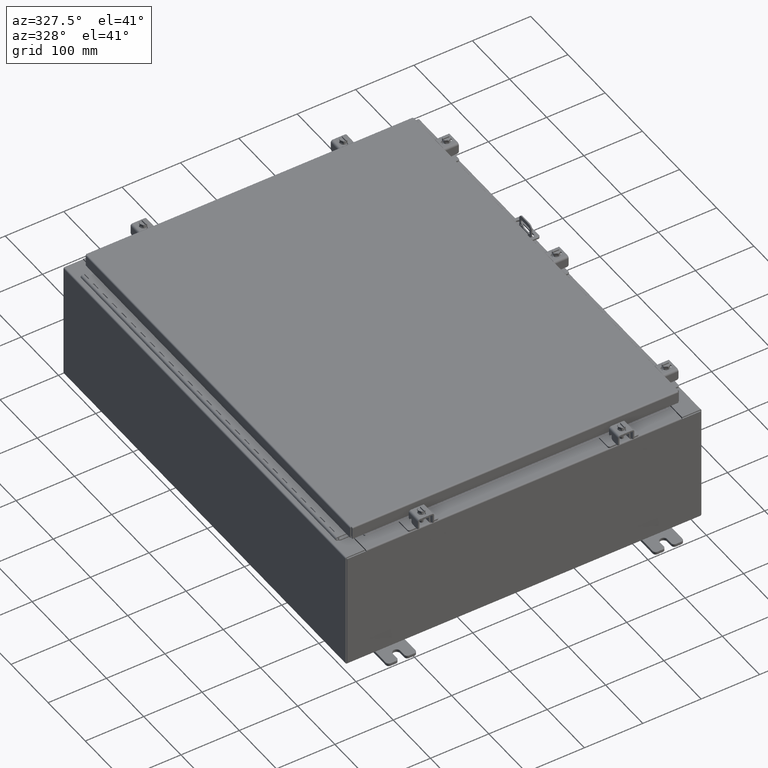
[diagram: clean part render]
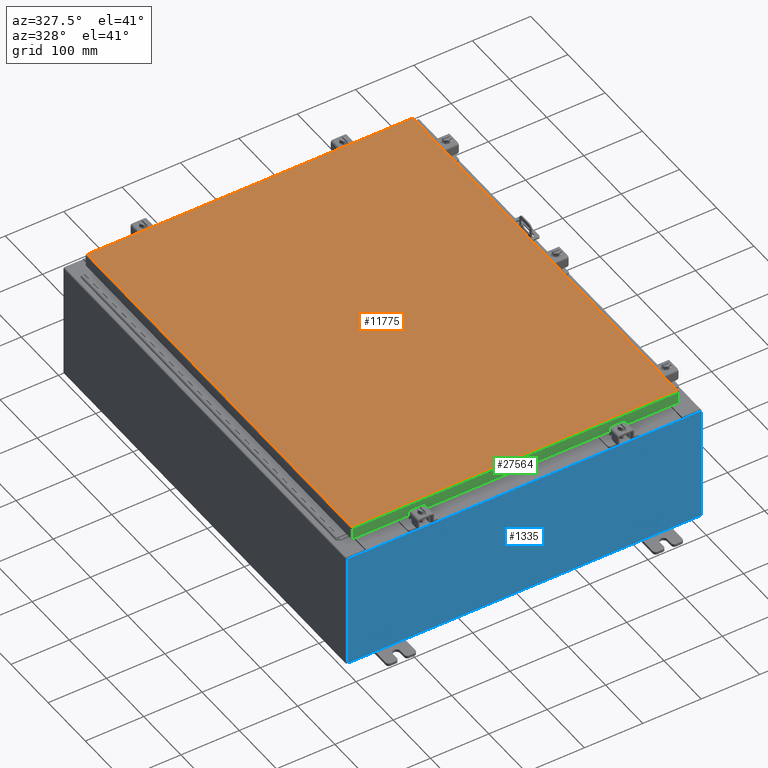
[diagram: same view with three faces highlighted in distinct colors, each labeled with its STEP entity id]
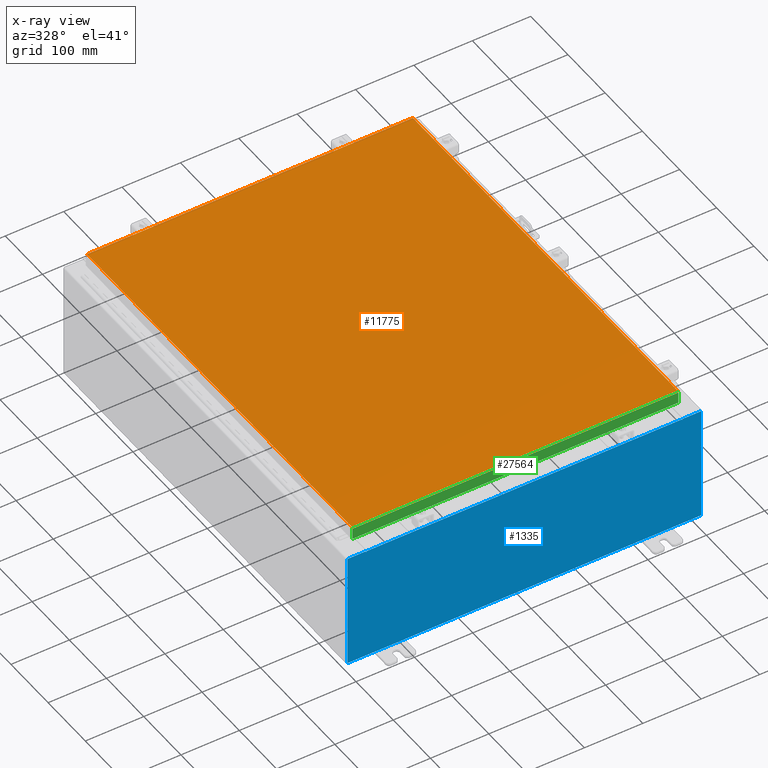
[diagram: x-ray of the same camera — body ghosted, the three highlighted faces saturated]
A machine part, auxiliary view with three faces highlighted in distinct colors.
The next image is the same camera in x-ray (body ghosted, the three faces saturated) — at least one of them is partly hidden behind the body in this view.
Their STEP definitions:

[orange] entity #11775 — the highlighted planar face has unit normal (0, 0, -1).
#147 = CARTESIAN_POINT ( 'NONE',  ( 10.99030000000000000, 14.00629999999999800, 0.0000000000000000000 ) ) ;
#898 = LINE ( 'NONE', #33983, #15507 ) ;
#1748 = VERTEX_POINT ( 'NONE', #33797 ) ;
#2654 = LINE ( 'NONE', #31669, #9522 ) ;
#3796 = EDGE_CURVE ( 'NONE', #9666, #23939, #2654, .T. ) ;
#4827 = VECTOR ( 'NONE', #8976, 39.37007874015748100 ) ;
#6013 = CARTESIAN_POINT ( 'NONE',  ( -10.99029999999999600, -14.00629999999999800, 0.0000000000000000000 ) ) ;
#6462 = EDGE_CURVE ( 'NONE', #23939, #1748, #13540, .T. ) ;
#7093 = EDGE_LOOP ( 'NONE', ( #15624, #18468, #17338, #9030 ) ) ;
#8225 = DIRECTION ( 'NONE',  ( 0.0000000000000000000, -1.000000000000000000, 0.0000000000000000000 ) ) ;
#8976 = DIRECTION ( 'NONE',  ( 1.000000000000000000, -0.0000000000000000000, -0.0000000000000000000 ) ) ;
#9030 = ORIENTED_EDGE ( 'NONE', *, *, #3796, .T. ) ;
#9522 = VECTOR ( 'NONE', #8225, 39.37007874015748100 ) ;
#9577 = CARTESIAN_POINT ( 'NONE',  ( -10.99030000000000000, 14.00630000000000100, 0.0000000000000000000 ) ) ;
#9666 = VERTEX_POINT ( 'NONE', #9577 ) ;
#9908 = DIRECTION ( 'NONE',  ( -1.000000000000000000, 0.0000000000000000000, -0.0000000000000000000 ) ) ;
#11775 = ADVANCED_FACE ( 'NONE', ( #27002 ), #15650, .F. ) ;
#13540 = LINE ( 'NONE', #6013, #4827 ) ;
#14327 = EDGE_CURVE ( 'NONE', #1748, #22404, #23550, .T. ) ;
#15507 = VECTOR ( 'NONE', #22552, 39.37007874015748100 ) ;
#15624 = ORIENTED_EDGE ( 'NONE', *, *, #6462, .T. ) ;
#15650 = PLANE ( 'NONE',  #28026 ) ;
#17338 = ORIENTED_EDGE ( 'NONE', *, *, #22203, .T. ) ;
#18468 = ORIENTED_EDGE ( 'NONE', *, *, #14327, .T. ) ;
#21563 = CARTESIAN_POINT ( 'NONE',  ( 0.0000000000000000000, 0.0000000000000000000, 0.0000000000000000000 ) ) ;
#22203 = EDGE_CURVE ( 'NONE', #22404, #9666, #898, .T. ) ;
#22404 = VERTEX_POINT ( 'NONE', #147 ) ;
#22552 = DIRECTION ( 'NONE',  ( -1.000000000000000000, -0.0000000000000000000, -0.0000000000000000000 ) ) ;
#23550 = LINE ( 'NONE', #30369, #37307 ) ;
#23939 = VERTEX_POINT ( 'NONE', #27483 ) ;
#27002 = FACE_OUTER_BOUND ( 'NONE', #7093, .T. ) ;
#27430 = DIRECTION ( 'NONE',  ( 0.0000000000000000000, 0.0000000000000000000, -1.000000000000000000 ) ) ;
#27483 = CARTESIAN_POINT ( 'NONE',  ( -10.99029999999999800, -14.00629999999999800, 0.0000000000000000000 ) ) ;
#28026 = AXIS2_PLACEMENT_3D ( 'NONE', #21563, #27430, #9908 ) ;
#30369 = CARTESIAN_POINT ( 'NONE',  ( 10.99030000000000000, -14.00629999999999800, 0.0000000000000000000 ) ) ;
#31669 = CARTESIAN_POINT ( 'NONE',  ( -10.99030000000000000, 14.00630000000000100, 0.0000000000000000000 ) ) ;
#33336 = DIRECTION ( 'NONE',  ( 0.0000000000000000000, 1.000000000000000000, 0.0000000000000000000 ) ) ;
#33797 = CARTESIAN_POINT ( 'NONE',  ( 10.99030000000000000, -14.00629999999999800, 0.0000000000000000000 ) ) ;
#33983 = CARTESIAN_POINT ( 'NONE',  ( 10.99030000000000000, 14.00629999999999800, 0.0000000000000000000 ) ) ;
#37307 = VECTOR ( 'NONE', #33336, 39.37007874015748100 ) ;

[blue] entity #1335 — the highlighted planar face has unit normal (0, 1, -0).
#84 = EDGE_CURVE ( 'NONE', #23436, #16726, #15712, .T. ) ;
#534 = CARTESIAN_POINT ( 'NONE',  ( -10.63720000000000400, 0.0000000000000000000, 3.912299999999988600 ) ) ;
#911 = VERTEX_POINT ( 'NONE', #33128 ) ;
#1235 = EDGE_CURVE ( 'NONE', #27130, #23436, #16993, .T. ) ;
#1335 = ADVANCED_FACE ( 'NONE', ( #5556 ), #29099, .F. ) ;
#1553 = EDGE_CURVE ( 'NONE', #15920, #2711, #22510, .T. ) ;
#1657 = CARTESIAN_POINT ( 'NONE',  ( 10.63720000000000400, 0.0000000000000000000, 8.195543980992789300E-015 ) ) ;
#1934 = DIRECTION ( 'NONE',  ( 2.688223102148528000E-016, 1.000000000000000000, -1.677591767810434000E-016 ) ) ;
#2231 = CARTESIAN_POINT ( 'NONE',  ( 10.67455000000000200, 0.0000000000000000000, 3.925300000000010700 ) ) ;
#2554 = VECTOR ( 'NONE', #19184, 39.37007874015748100 ) ;
#2711 = VERTEX_POINT ( 'NONE', #15371 ) ;
#2815 = CARTESIAN_POINT ( 'NONE',  ( -11.92530000000000000, 0.0000000000000000000, 3.925299999999987600 ) ) ;
#3107 = DIRECTION ( 'NONE',  ( -4.423839507246891700E-014, 1.677591767810317700E-016, -1.000000000000000000 ) ) ;
#3458 = LINE ( 'NONE', #32309, #10301 ) ;
#3584 = VERTEX_POINT ( 'NONE', #24903 ) ;
#4334 = CIRCLE ( 'NONE', #10418, 0.01867499999999949400 ) ;
#4408 = CARTESIAN_POINT ( 'NONE',  ( 11.92530000000000000, 0.0000000000000000000, 3.925300000000012000 ) ) ;
#4872 = EDGE_CURVE ( 'NONE', #37538, #911, #25140, .T. ) ;
#5194 = CARTESIAN_POINT ( 'NONE',  ( 10.67455000000000200, 0.0000000000000000000, 3.874950000000010300 ) ) ;
#5541 = CARTESIAN_POINT ( 'NONE',  ( 11.92530000000000000, 0.0000000000000000000, -3.925299999999988900 ) ) ;
#5556 = FACE_OUTER_BOUND ( 'NONE', #17847, .T. ) ;
#6294 = CARTESIAN_POINT ( 'NONE',  ( -10.63720000000000400, 0.0000000000000000000, 3.874949999999988600 ) ) ;
#6473 = DIRECTION ( 'NONE',  ( 1.000000000000000000, 2.688223102148527500E-016, 8.326672684688674100E-016 ) ) ;
#6784 = EDGE_CURVE ( 'NONE', #911, #16726, #25908, .T. ) ;
#6918 = ORIENTED_EDGE ( 'NONE', *, *, #4872, .F. ) ;
#7567 = ORIENTED_EDGE ( 'NONE', *, *, #37176, .T. ) ;
#7648 = CARTESIAN_POINT ( 'NONE',  ( -10.65587500000000200, 0.0000000000000000000, 3.874949999999988600 ) ) ;
#7837 = CARTESIAN_POINT ( 'NONE',  ( -11.92530000000000000, 0.0000000000000000000, -3.925300000000010700 ) ) ;
#8721 = DIRECTION ( 'NONE',  ( -8.326672684688674100E-016, 1.677591767810434500E-016, -1.000000000000000000 ) ) ;
#8738 = CARTESIAN_POINT ( 'NONE',  ( 0.0000000000000000000, 0.0000000000000000000, 0.0000000000000000000 ) ) ;
#8869 = EDGE_CURVE ( 'NONE', #3584, #37538, #34627, .T. ) ;
#8897 = EDGE_CURVE ( 'NONE', #15920, #21085, #3458, .T. ) ;
#8996 = EDGE_CURVE ( 'NONE', #3584, #27946, #23142, .T. ) ;
#9677 = VERTEX_POINT ( 'NONE', #35983 ) ;
#10301 = VECTOR ( 'NONE', #3107, 39.37007874015748100 ) ;
#10314 = ORIENTED_EDGE ( 'NONE', *, *, #37225, .T. ) ;
#10397 = ORIENTED_EDGE ( 'NONE', *, *, #8869, .F. ) ;
#10418 = AXIS2_PLACEMENT_3D ( 'NONE', #19454, #1934, #22422 ) ;
#10585 = DIRECTION ( 'NONE',  ( 0.0000000000000000000, 1.677591767810434500E-016, -1.000000000000000000 ) ) ;
#10968 = EDGE_CURVE ( 'NONE', #9677, #27946, #17440, .T. ) ;
#11662 = DIRECTION ( 'NONE',  ( -8.326672684688674100E-016, 1.677591767810434500E-016, -1.000000000000000000 ) ) ;
#11706 = VECTOR ( 'NONE', #16169, 39.37007874015748100 ) ;
#12842 = ORIENTED_EDGE ( 'NONE', *, *, #8897, .F. ) ;
#14694 = VECTOR ( 'NONE', #16214, 39.37007874015748100 ) ;
#15371 = CARTESIAN_POINT ( 'NONE',  ( 11.92530000000000000, 0.0000000000000000000, 3.925300000000012000 ) ) ;
#15712 = LINE ( 'NONE', #2815, #32250 ) ;
#15920 = VERTEX_POINT ( 'NONE', #2231 ) ;
#16169 = DIRECTION ( 'NONE',  ( -8.326672684688674100E-016, 1.677591767810434500E-016, -1.000000000000000000 ) ) ;
#16214 = DIRECTION ( 'NONE',  ( 8.326672684688674100E-016, -1.677591767810434500E-016, 1.000000000000000000 ) ) ;
#16230 = CARTESIAN_POINT ( 'NONE',  ( 10.63720000000000400, 0.0000000000000000000, 3.912300000000005000 ) ) ;
#16726 = VERTEX_POINT ( 'NONE', #35481 ) ;
#16993 = LINE ( 'NONE', #37584, #24822 ) ;
#17440 = LINE ( 'NONE', #1657, #14694 ) ;
#17679 = VECTOR ( 'NONE', #28331, 39.37007874015748100 ) ;
#17847 = EDGE_LOOP ( 'NONE', ( #34168, #6918, #10397, #22356, #21162, #27028, #12842, #21238, #7567, #10314, #37243, #20823 ) ) ;
#18950 = CARTESIAN_POINT ( 'NONE',  ( -11.92530000000000000, 0.0000000000000000000, 3.925299999999987600 ) ) ;
#19021 = VECTOR ( 'NONE', #8721, 39.37007874015748100 ) ;
#19184 = DIRECTION ( 'NONE',  ( 8.326672684688674100E-016, -1.677591767810434500E-016, 1.000000000000000000 ) ) ;
#19454 = CARTESIAN_POINT ( 'NONE',  ( 10.65587500000000200, 0.0000000000000000000, 3.874950000000010300 ) ) ;
#20005 = DIRECTION ( 'NONE',  ( 8.326672684688674100E-016, -1.677591767810434500E-016, 1.000000000000000000 ) ) ;
#20823 = ORIENTED_EDGE ( 'NONE', *, *, #84, .T. ) ;
#21085 = VERTEX_POINT ( 'NONE', #5194 ) ;
#21162 = ORIENTED_EDGE ( 'NONE', *, *, #10968, .F. ) ;
#21238 = ORIENTED_EDGE ( 'NONE', *, *, #1553, .T. ) ;
#22356 = ORIENTED_EDGE ( 'NONE', *, *, #8996, .T. ) ;
#22422 = DIRECTION ( 'NONE',  ( 0.0000000000000000000, 1.677591767810434500E-016, -1.000000000000000000 ) ) ;
#22510 = LINE ( 'NONE', #24336, #36284 ) ;
#23142 = LINE ( 'NONE', #534, #37817 ) ;
#23287 = DIRECTION ( 'NONE',  ( 1.000000000000000000, 2.688223102148527500E-016, 8.326672684688674100E-016 ) ) ;
#23354 = CARTESIAN_POINT ( 'NONE',  ( -11.92530000000000000, 0.0000000000000000000, -3.925300000000010700 ) ) ;
#23436 = VERTEX_POINT ( 'NONE', #18950 ) ;
#24336 = CARTESIAN_POINT ( 'NONE',  ( -11.92530000000000000, 0.0000000000000000000, 3.925299999999987600 ) ) ;
#24566 = LINE ( 'NONE', #7837, #17679 ) ;
#24822 = VECTOR ( 'NONE', #20005, 39.37007874015748100 ) ;
#24903 = CARTESIAN_POINT ( 'NONE',  ( -10.63720000000000400, 0.0000000000000000000, 3.912299999999988600 ) ) ;
#24961 = CARTESIAN_POINT ( 'NONE',  ( -10.67455000000000200, 0.0000000000000000000, -8.195543980992789300E-015 ) ) ;
#25140 = CIRCLE ( 'NONE', #34256, 0.01867499999999949400 ) ;
#25908 = LINE ( 'NONE', #24961, #2554 ) ;
#27028 = ORIENTED_EDGE ( 'NONE', *, *, #37854, .F. ) ;
#27130 = VERTEX_POINT ( 'NONE', #23354 ) ;
#27946 = VERTEX_POINT ( 'NONE', #16230 ) ;
#28134 = DIRECTION ( 'NONE',  ( 2.688223102148528000E-016, 1.000000000000000000, -1.677591767810434000E-016 ) ) ;
#28331 = DIRECTION ( 'NONE',  ( -1.000000000000000000, -2.688223102148527500E-016, -8.326672684688674100E-016 ) ) ;
#28373 = VERTEX_POINT ( 'NONE', #5541 ) ;
#29099 = PLANE ( 'NONE',  #37858 ) ;
#29222 = DIRECTION ( 'NONE',  ( -2.688223102148531000E-016, -1.000000000000000000, -1.677591767810432300E-016 ) ) ;
#32250 = VECTOR ( 'NONE', #23287, 39.37007874015748100 ) ;
#32309 = CARTESIAN_POINT ( 'NONE',  ( 10.67454999999983300, 0.0000000000000000000, -4.551258757444662300E-013 ) ) ;
#33128 = CARTESIAN_POINT ( 'NONE',  ( -10.67455000000000200, 0.0000000000000000000, 3.874949999999988600 ) ) ;
#34168 = ORIENTED_EDGE ( 'NONE', *, *, #6784, .F. ) ;
#34256 = AXIS2_PLACEMENT_3D ( 'NONE', #7648, #28134, #10585 ) ;
#34627 = LINE ( 'NONE', #35139, #19021 ) ;
#35133 = LINE ( 'NONE', #4408, #11706 ) ;
#35139 = CARTESIAN_POINT ( 'NONE',  ( -10.63720000000000400, 0.0000000000000000000, -8.195543980992789300E-015 ) ) ;
#35481 = CARTESIAN_POINT ( 'NONE',  ( -10.67455000000000200, 0.0000000000000000000, 3.925299999999988900 ) ) ;
#35647 = DIRECTION ( 'NONE',  ( 1.000000000000000000, 2.688223102148527500E-016, 8.326672684688674100E-016 ) ) ;
#35983 = CARTESIAN_POINT ( 'NONE',  ( 10.63720000000000400, 0.0000000000000000000, 3.874950000000005000 ) ) ;
#36284 = VECTOR ( 'NONE', #6473, 39.37007874015748100 ) ;
#37176 = EDGE_CURVE ( 'NONE', #2711, #28373, #35133, .T. ) ;
#37225 = EDGE_CURVE ( 'NONE', #28373, #27130, #24566, .T. ) ;
#37243 = ORIENTED_EDGE ( 'NONE', *, *, #1235, .T. ) ;
#37538 = VERTEX_POINT ( 'NONE', #6294 ) ;
#37584 = CARTESIAN_POINT ( 'NONE',  ( -11.92530000000000000, 0.0000000000000000000, 3.925299999999987600 ) ) ;
#37817 = VECTOR ( 'NONE', #35647, 39.37007874015748100 ) ;
#37854 = EDGE_CURVE ( 'NONE', #21085, #9677, #4334, .T. ) ;
#37858 = AXIS2_PLACEMENT_3D ( 'NONE', #8738, #29222, #11662 ) ;

[green] entity #27564 — the highlighted planar face has unit normal (0, 1, -0).
#117 = CARTESIAN_POINT ( 'NONE',  ( 11.07799999999999900, -14.09400000000000100, -0.08770000000000245700 ) ) ;
#137 = DIRECTION ( 'NONE',  ( -1.000000000000000000, 0.0000000000000000000, 0.0000000000000000000 ) ) ;
#393 = VECTOR ( 'NONE', #26466, 39.37007874015748100 ) ;
#1397 = VERTEX_POINT ( 'NONE', #23591 ) ;
#4958 = EDGE_CURVE ( 'NONE', #32408, #1397, #14585, .T. ) ;
#5124 = EDGE_CURVE ( 'NONE', #8012, #16365, #8148, .T. ) ;
#5474 = CARTESIAN_POINT ( 'NONE',  ( 11.07799999999999900, -14.09400000000000300, -0.8499999999999999800 ) ) ;
#6096 = LINE ( 'NONE', #5474, #36382 ) ;
#6535 = CARTESIAN_POINT ( 'NONE',  ( 10.98915786437626900, -14.09400000000000100, -0.07470000000000015500 ) ) ;
#8012 = VERTEX_POINT ( 'NONE', #36748 ) ;
#8031 = DIRECTION ( 'NONE',  ( -1.000000000000000000, 9.864047639156033700E-017, 1.233005954894504400E-016 ) ) ;
#8148 = LINE ( 'NONE', #117, #393 ) ;
#9795 = ORIENTED_EDGE ( 'NONE', *, *, #31167, .F. ) ;
#10770 = EDGE_CURVE ( 'NONE', #1397, #28514, #33561, .T. ) ;
#11891 = VERTEX_POINT ( 'NONE', #22572 ) ;
#13034 = LINE ( 'NONE', #16248, #19909 ) ;
#14303 = FACE_OUTER_BOUND ( 'NONE', #22862, .T. ) ;
#14444 = AXIS2_PLACEMENT_3D ( 'NONE', #28302, #37171, #19602 ) ;
#14585 = LINE ( 'NONE', #34312, #29239 ) ;
#14707 = CARTESIAN_POINT ( 'NONE',  ( 10.23915786437626700, -14.09399999999999900, -0.8500000000000010900 ) ) ;
#15378 = DIRECTION ( 'NONE',  ( 0.0000000000000000000, -2.818880942772360100E-015, -1.000000000000000000 ) ) ;
#16248 = CARTESIAN_POINT ( 'NONE',  ( -10.98915786437626900, -14.09399999999999900, 4.043135030623109600E-014 ) ) ;
#16365 = VERTEX_POINT ( 'NONE', #19078 ) ;
#17712 = ORIENTED_EDGE ( 'NONE', *, *, #4958, .F. ) ;
#17941 = VECTOR ( 'NONE', #137, 39.37007874015748100 ) ;
#17940 = CARTESIAN_POINT ( 'NONE',  ( -10.23915786437626700, -14.09399999999999900, -0.8500000000000010900 ) ) ;
#19078 = CARTESIAN_POINT ( 'NONE',  ( 10.98915786437624400, -14.09400000000000100, -0.08770000000000245700 ) ) ;
#19602 = DIRECTION ( 'NONE',  ( 0.0000000000000000000, 2.818880942772360100E-015, 1.000000000000000000 ) ) ;
#19909 = VECTOR ( 'NONE', #28028, 39.37007874015748100 ) ;
#20108 = EDGE_CURVE ( 'NONE', #16365, #32408, #29840, .T. ) ;
#22440 = PLANE ( 'NONE',  #14444 ) ;
#22572 = CARTESIAN_POINT ( 'NONE',  ( -10.98915786437626700, -14.09400000000000100, -0.8499999999999966500 ) ) ;
#22862 = EDGE_LOOP ( 'NONE', ( #29332, #37511, #9795, #28568, #17712, #24901 ) ) ;
#23591 = CARTESIAN_POINT ( 'NONE',  ( 10.23915786437626700, -14.09399999999999900, -0.8500000000000010900 ) ) ;
#24901 = ORIENTED_EDGE ( 'NONE', *, *, #20108, .F. ) ;
#26466 = DIRECTION ( 'NONE',  ( 1.000000000000000000, -9.864047639155999200E-017, -9.196021172131615100E-046 ) ) ;
#26506 = CARTESIAN_POINT ( 'NONE',  ( 10.98915786437626900, -14.09400000000000300, -0.8499999999999999800 ) ) ;
#27564 = ADVANCED_FACE ( 'NONE', ( #14303 ), #22440, .F. ) ;
#28028 = DIRECTION ( 'NONE',  ( 0.0000000000000000000, -2.818880942772360100E-015, -1.000000000000000000 ) ) ;
#28302 = CARTESIAN_POINT ( 'NONE',  ( -1.389400815527684000E-015, -14.09399999999999900, 4.043135030623109600E-014 ) ) ;
#28514 = VERTEX_POINT ( 'NONE', #17940 ) ;
#28568 = ORIENTED_EDGE ( 'NONE', *, *, #10770, .F. ) ;
#29239 = VECTOR ( 'NONE', #8031, 39.37007874015748100 ) ;
#29332 = ORIENTED_EDGE ( 'NONE', *, *, #5124, .F. ) ;
#29840 = LINE ( 'NONE', #6535, #36736 ) ;
#31167 = EDGE_CURVE ( 'NONE', #28514, #11891, #6096, .T. ) ;
#31875 = DIRECTION ( 'NONE',  ( -1.000000000000000000, 9.864047639156033700E-017, 1.233005954894504400E-016 ) ) ;
#32408 = VERTEX_POINT ( 'NONE', #26506 ) ;
#33561 = LINE ( 'NONE', #14707, #17941 ) ;
#34312 = CARTESIAN_POINT ( 'NONE',  ( 11.07799999999999900, -14.09400000000000300, -0.8499999999999999800 ) ) ;
#36382 = VECTOR ( 'NONE', #31875, 39.37007874015748100 ) ;
#36736 = VECTOR ( 'NONE', #15378, 39.37007874015748100 ) ;
#36748 = CARTESIAN_POINT ( 'NONE',  ( -10.98915786437626700, -14.09399999999999900, -0.08770000000000245700 ) ) ;
#37171 = DIRECTION ( 'NONE',  ( 9.864047639155998000E-017, 1.000000000000000000, -2.818880942772360100E-015 ) ) ;
#37511 = ORIENTED_EDGE ( 'NONE', *, *, #37803, .T. ) ;
#37803 = EDGE_CURVE ( 'NONE', #8012, #11891, #13034, .T. ) ;